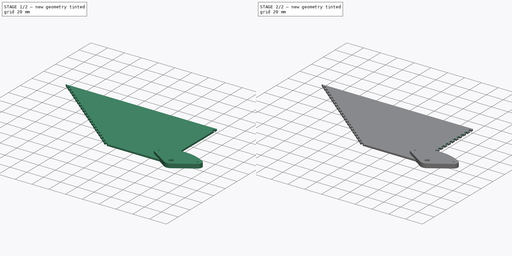
[diagram: build sequence overview — one tinted view per stage of 2, left to right]
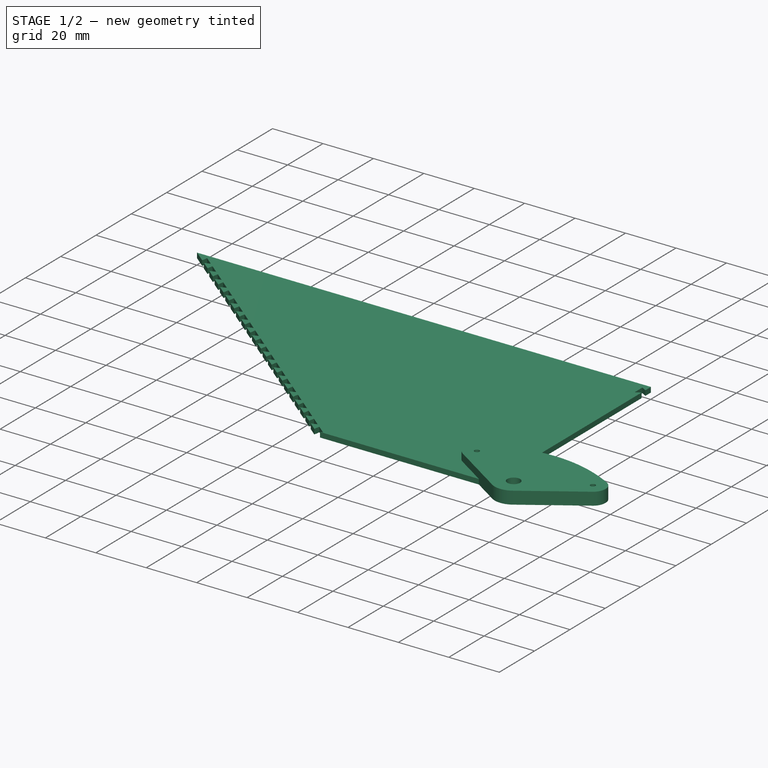
[diagram: stage 1 of 2 — iso view after this stage's code; geometry added in this stage tinted green]
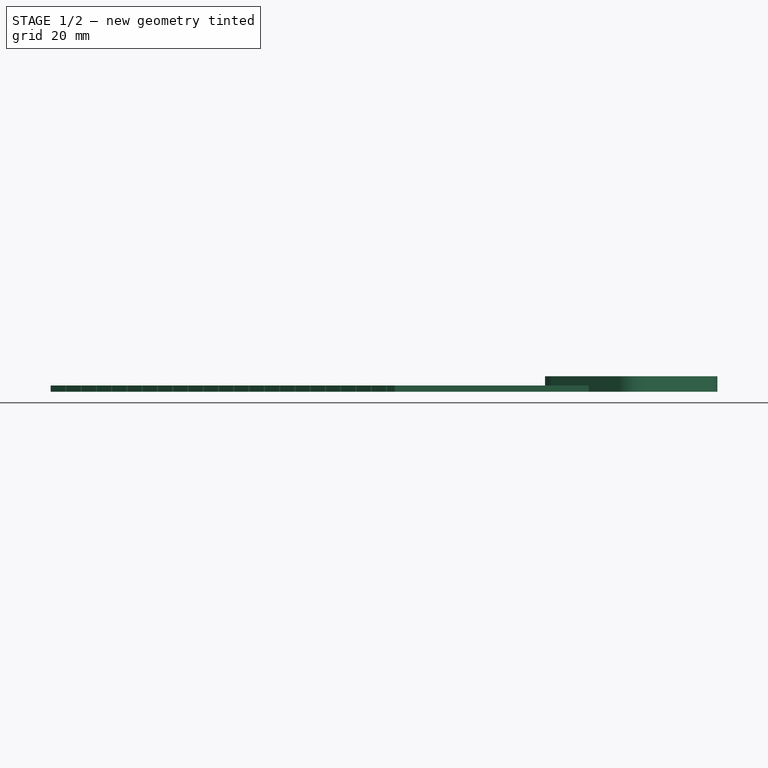
[diagram: stage 1 of 2 — front view after this stage's code; geometry added in this stage tinted green]
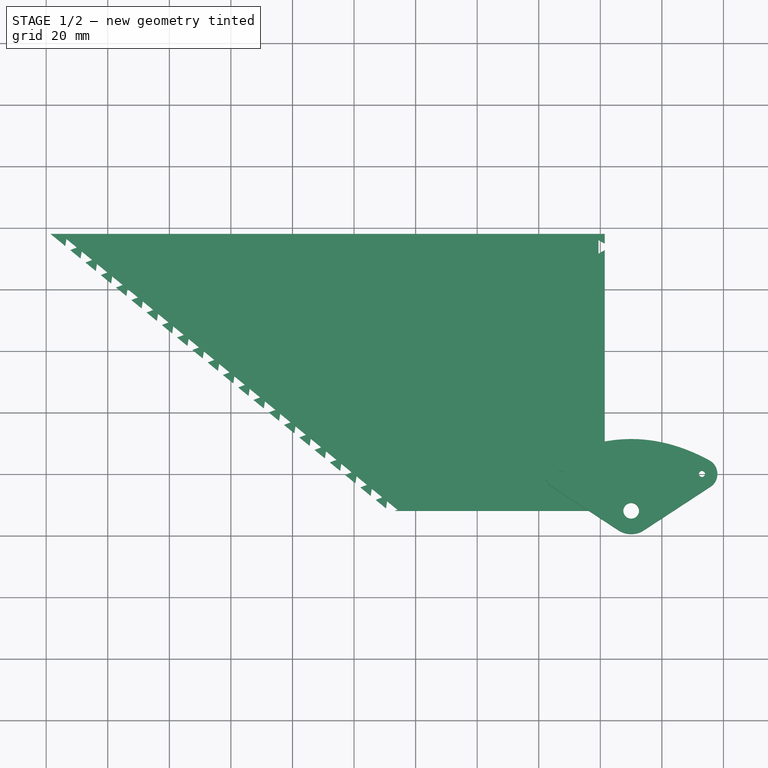
[diagram: stage 1 of 2 — top view after this stage's code; geometry added in this stage tinted green]
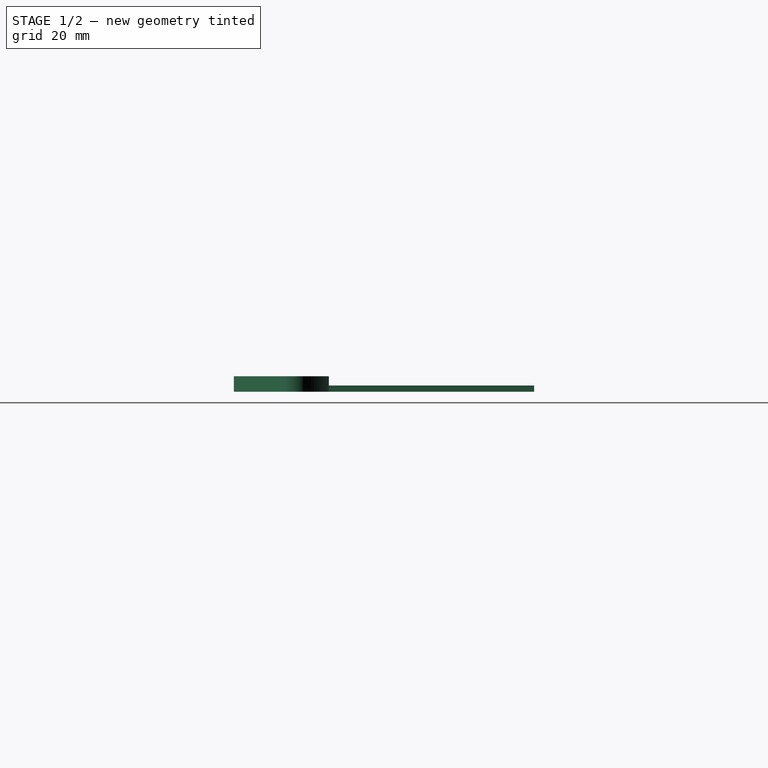
[diagram: stage 1 of 2 — right view after this stage's code; geometry added in this stage tinted green]
FCSTD DOCUMENT  (FreeCAD 0.19R24291 (Git))
Label: bunkerLeftSide
License: All rights reserved
LicenseURL: http://en.wikipedia.org/wiki/All_rights_reserved
objects: Sketcher::SketchObject×4, PartDesign::Pad×2, PartDesign::Pocket×2, PartDesign::LinearPattern×2, Spreadsheet::Sheet×1, PartDesign::Body×1
note: 15 computed .brp shape members not serialized (recipe doc carries the construction recipe); baked Part::Feature solids carry a one-line shape summary decoded from their .brp

FEATURE [Sketcher::SketchObject] Sketch
  FullyConstrained = false
  MapMode = 5
  Support = -> [XY_Plane]
  sketch-geometry (4):
    g0: LineSegment StartX=81.431 StartY=38.0909 StartZ=0 EndX=-98.569 EndY=38.0909 EndZ=0
    g1: LineSegment StartX=81.431 StartY=38.0909 StartZ=0 EndX=81.431 EndY=-51.9091 EndZ=0
    g2: LineSegment StartX=81.431 StartY=-51.9091 StartZ=0 EndX=11.431 EndY=-51.9091 EndZ=0
    g3: LineSegment StartX=11.431 StartY=-51.9091 StartZ=0 EndX=-98.569 EndY=38.0909 EndZ=0
  constraints (10):
    c: Horizontal(g0)
    c: Coincident(g0,g1)
    c: Vertical(g1)
    c: Coincident(g1,g2)
    c: Horizontal(g2)
    c: Coincident(g2,g3)
    c: Coincident(g3,g0)
    c: Distance(g1) = 90
    c: Distance(g0) = 180
    c: Distance(g2) = 70
FEATURE [Sketcher::SketchObject] Sketch001
  ExternalGeometry = -> [Sketch]
  FullyConstrained = false
  MapMode = 5
  Support = -> [XY_Plane]
  sketch-geometry (23):
    g0: LineSegment StartX=67.031 StartY=-39.9091 StartZ=0 EndX=90.031 EndY=-39.9091 EndZ=0
    g1: LineSegment StartX=90.031 StartY=-39.9091 StartZ=0 EndX=113.031 EndY=-39.9091 EndZ=0
    g2: LineSegment StartX=90.031 StartY=-39.9091 StartZ=0 EndX=90.031 EndY=-51.9091 EndZ=0
    g3: Circle CenterX=67.031 CenterY=-39.9091 CenterZ=0 NormalX=0 NormalY=0 NormalZ=1 AngleXU=0 Radius=1
    g4: Circle CenterX=113.031 CenterY=-39.9091 CenterZ=0 NormalX=0 NormalY=0 NormalZ=1 AngleXU=0 Radius=1
    g5: Circle CenterX=90.031 CenterY=-51.9091 CenterZ=0 NormalX=0 NormalY=0 NormalZ=1 AngleXU=0 Radius=2.55
    g6: LineSegment StartX=81.431 StartY=-51.9091 StartZ=0 EndX=90.031 EndY=-51.9091 EndZ=0
    g7: ArcOfParabola CenterX=90.031 CenterY=-28.6024 CenterZ=0 NormalX=0 NormalY=0 NormalZ=1 Focal=23.3067 AngleXU=-1.5708 StartAngle=-25.3918 EndAngle=25.3918
    g8: GeomPoint X=90.031 Y=-51.9091 Z=0
    g9: LineSegment StartX=90.031 StartY=-28.6024 StartZ=0 EndX=90.031 EndY=-51.9091 EndZ=0
    g10: LineSegment StartX=67.031 StartY=-39.9091 StartZ=0 EndX=64.6392 EndY=-35.5183 EndZ=0
    g11: GeomPoint X=64.6392 Y=-35.5183 Z=0
    g12: LineSegment StartX=113.031 StartY=-39.9091 StartZ=0 EndX=115.423 EndY=-35.5183 EndZ=0
    g13: GeomPoint X=115.423 Y=-35.5183 Z=0
    g14: ArcOfCircle CenterX=113.031 CenterY=-39.9091 CenterZ=0 NormalX=0 NormalY=0 NormalZ=1 AngleXU=0 Radius=5 StartAngle=5.29173 EndAngle=7.35519
    g15: GeomPoint X=68.7285 Y=-33.4701 Z=0
    g16: GeomPoint X=115.423 Y=-35.5183 Z=0
    g17: ArcOfCircle CenterX=67.031 CenterY=-39.9091 CenterZ=0 NormalX=0 NormalY=0 NormalZ=1 AngleXU=0 Radius=5 StartAngle=2.06959 EndAngle=4.13305
    g18: GeomPoint X=63.7573 Y=-43.6884 Z=0
    g19: GeomPoint X=116.305 Y=-43.6885 Z=0
    g20: ArcOfCircle CenterX=90.031 CenterY=-51.9091 CenterZ=0 NormalX=0 NormalY=0 NormalZ=1 AngleXU=0 Radius=7.55 StartAngle=4.13305 EndAngle=5.29173
    g21: LineSegment StartX=94.1644 StartY=-58.2271 StartZ=0 EndX=115.768 EndY=-44.0932 EndZ=0
    g22: LineSegment StartX=85.8976 StartY=-58.2271 StartZ=0 EndX=64.2936 EndY=-44.0932 EndZ=0
  constraints (55):
    c: Horizontal(g0)
    c: Coincident(g1,g0)
    c: Horizontal(g1)
    c: Coincident(g2,g0)
    c: Vertical(g2)
    c: Equal(g1,g0)
    c: Distance(g1,g0) = 46
    c: Distance(g2) = 12
    c: Coincident(g3,g0)
    c: Coincident(g4,g1)
    c: Equal(g4,g3)
    c: Coincident(g5,g2)
    c: Diameter(g5) = 5.1
    c: Diameter(g4) = 2
    c: Coincident(g6,g-4)
    c: Coincident(g6,g5)
    c: Horizontal(g6)
    c: Distance(g6) = 8.6
    c: InternalAlignment(g8,g7)
    c: Coincident(g8,g9)
    c: Coincident(g7,g9)
    c: Coincident(g10,g3)
    c: PointOnObject(g10,g7)
    c: PointOnObject(g11,g7)
    c: PointOnObject(g11,g10)
    c: Perpendicular(g7,g10,g11) = 1.5708
    c: Coincident(g12,g4)
    c: PointOnObject(g12,g7)
    c: PointOnObject(g13,g7)
    c: PointOnObject(g13,g12)
    c: Perpendicular(g7,g12,g13) = 1.5708
    c: Equal(g12,g10)
    c: Coincident(g8,g5)
    c: Coincident(g14,g7)
    c: PointOnObject(g15,g7)
    c: PointOnObject(g16,g7)
    c: PointOnObject(g16,g14)
    c: Tangent(g7,g14,g16) = 1.5708
    c: Distance(g12) = 5
    c: Coincident(g17,g3)
    c: Coincident(g17,g7)
    c: Coincident(g14,g4)
    c: Equal(g14,g17)
    c: PointOnObject(g18,g17)
    c: PointOnObject(g19,g14)
    c: Coincident(g20,g5)
    c: Radius(g20) = 7.55
    c: Coincident(g21,g20)
    c: Coincident(g21,g14)
    c: Coincident(g22,g20)
    c: Coincident(g22,g17)
    c: Tangent(g14,g21)
    c: Tangent(g22,g17)
    c: Tangent(g20,g22)
    c: Tangent(g20,g21)
FEATURE [PartDesign::Pad] Pad
  Direction = (1,1,1)
  Length = 2
  Length2 = 100
  Profile = -> Sketch
  Type = 0
FEATURE [PartDesign::Pad] Pad001
  BaseFeature = -> Pad
  Direction = (1,1,1)
  Length = 5
  Length2 = 100
  Profile = -> Sketch001
  Type = 0
FEATURE [Spreadsheet::Sheet] Spreadsheet
  cells = A1=2* cos(60) * 2 + 2.1 +2; B1(thickness)=2; B2(dovetail_length)==thickness * 1 / tan(60) * 2 + thickness + gap + 2; B3(gap)=0.1; C5==cos(60)
FEATURE [PartDesign::Body] Body
  Group = -> [Sketch,Sketch001,Pad,Pad001,Sketch002,Pocket,LinearPattern,Sketch003,Pocket001,LinearPattern001]
  Origin = -> Origin
  Tip = -> LinearPattern001
FEATURE [Sketcher::SketchObject] Sketch002
  ExternalGeometry = -> [Pad001]
  FullyConstrained = false
  MapMode = 5
  Placement = pos=(0,0,2) rot=(0,0,1;0rad)
  Support = -> [LinearPattern]
  sketch-geometry (6):
    g0: LineSegment StartX=-93.4327 StartY=36.4726 StartZ=0 EndX=-90.0201 EndY=33.6804 EndZ=0
    g1: LineSegment StartX=-93.4327 StartY=36.4726 StartZ=0 EndX=-94.6992 EndY=34.9247 EndZ=0
    g2: LineSegment StartX=-93.4327 StartY=36.4726 StartZ=0 EndX=-93.8055 EndY=34.1935 EndZ=0
    g3: LineSegment StartX=-93.8055 StartY=34.1935 StartZ=0 EndX=-92.1802 EndY=32.8637 EndZ=0
    g4: LineSegment StartX=-92.1802 StartY=32.8637 StartZ=0 EndX=-90.0201 EndY=33.6804 EndZ=0
    g5: LineSegment StartX=-98.569 StartY=38.0909 StartZ=0 EndX=-96.4151 EndY=40.7235 EndZ=0
  constraints (18):
    c: Parallel(g0,g-3)
    c: Coincident(g1,g0)
    c: PointOnObject(g1,g-3)
    c: Perpendicular(g-3,g1)
    c: Distance(g1) = 2
    c: Coincident(g0,g2)
    c: PointOnObject(g2,g-3)
    c: Coincident(g2,g3)
    c: PointOnObject(g3,g-3)
    c: Coincident(g3,g4)
    c: Coincident(g4,g0)
    c: Equal(g4,g2)
    c: Angle(g-3,g4) = 1.0472
    c: Distance(g3) = 2.1
    c: Coincident(g5,g-3)
    c: Perpendicular(g5,g-3)
    c: Distance(g0,g5) = 5
    c: Distance(g0) = 4.4094
FEATURE [PartDesign::Pocket] Pocket
  BaseFeature = -> Pad001
  Length = 2
  Length2 = 100
  Profile = -> Sketch002
  Type = 0
FEATURE [PartDesign::LinearPattern] LinearPattern
  BaseFeature = -> Pocket
  Direction = -> Pocket [Edge23]
  Length = 147.416
  Occurrences = 24
  Originals = -> [Pocket]
  Reversed = true
  expr: Length = Spreadsheet.dovetail_length * (24 - 1)
FEATURE [Sketcher::SketchObject] Sketch003
  ExternalGeometry = -> [LinearPattern]
  FullyConstrained = true
  MapMode = 5
  Placement = pos=(0,0,2) rot=(0,0,1;0rad)
  Support = -> [LinearPattern]
  expr: Constraints[6] = Spreadsheet.thickness
  sketch-geometry (4):
    g0: LineSegment StartX=81.431 StartY=34.9362 StartZ=0 EndX=79.431 EndY=36.0909 EndZ=0
    g1: LineSegment StartX=79.431 StartY=36.0909 StartZ=0 EndX=79.431 EndY=31.6815 EndZ=0
    g2: LineSegment StartX=79.431 StartY=31.6815 StartZ=0 EndX=81.431 EndY=32.8362 EndZ=0
    g3: LineSegment StartX=81.431 StartY=32.8362 StartZ=0 EndX=81.431 EndY=34.9362 EndZ=0
  constraints (12):
    c: PointOnObject(g0,g-3)
    c: Coincident(g0,g1)
    c: Vertical(g1)
    c: Coincident(g1,g2)
    c: PointOnObject(g2,g-3)
    c: Equal(g2,g0)
    c: Distance(g1,g-3) = 2
    c: Angle(g0,g-3) = 2.0944
    c: DistanceY(g0,g-3) = 2
    c: Coincident(g3,g2)
    c: Coincident(g3,g0)
    c: Distance(g3) = 2.1
FEATURE [PartDesign::Pocket] Pocket001
  BaseFeature = -> LinearPattern
  Length = 5
  Length2 = 1
  Profile = -> Sketch003
  Type = 4
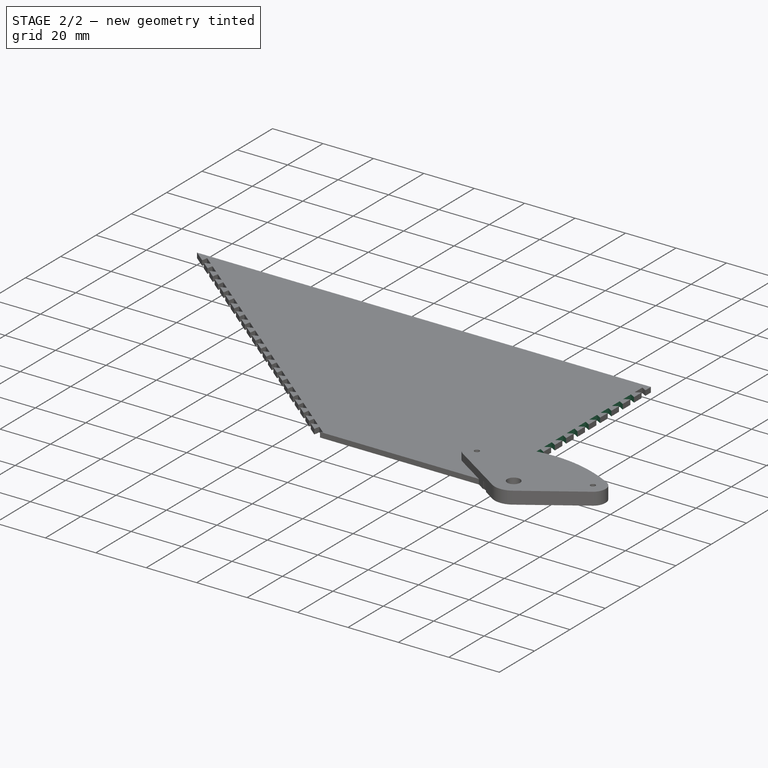
[diagram: stage 2 of 2 — iso view after this stage's code; geometry added in this stage tinted green]
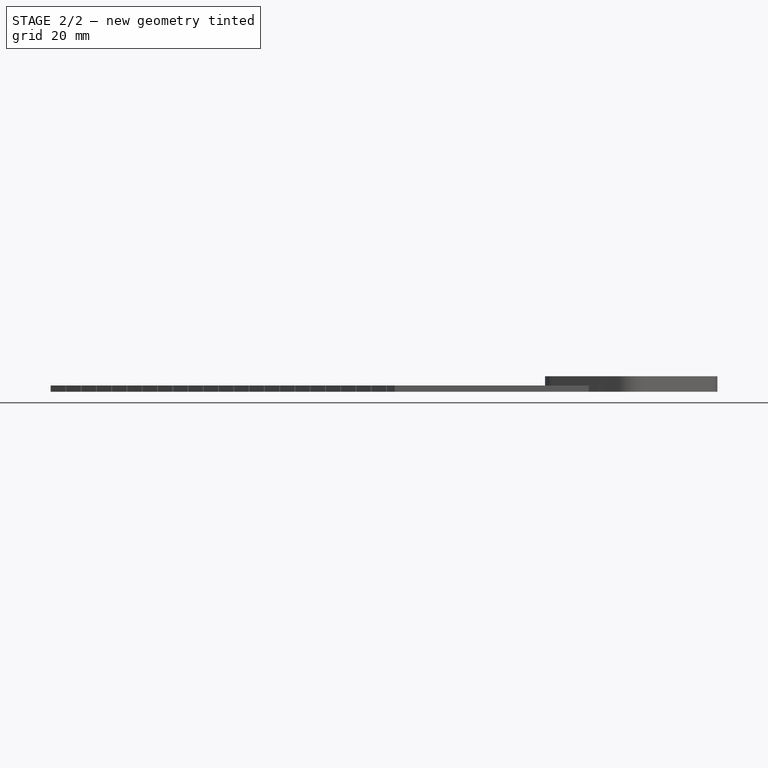
[diagram: stage 2 of 2 — front view after this stage's code; geometry added in this stage tinted green]
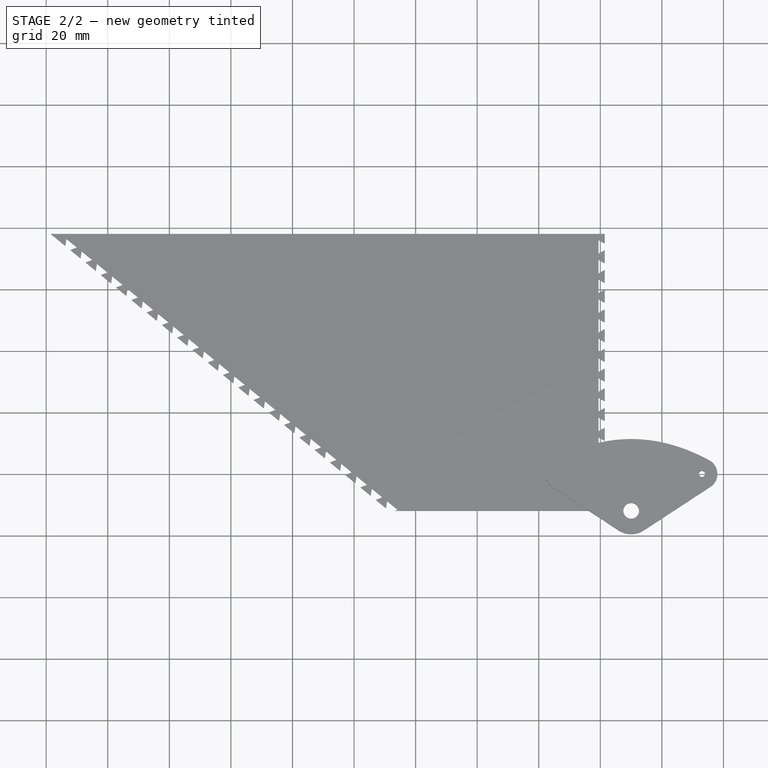
[diagram: stage 2 of 2 — top view after this stage's code; geometry added in this stage tinted green]
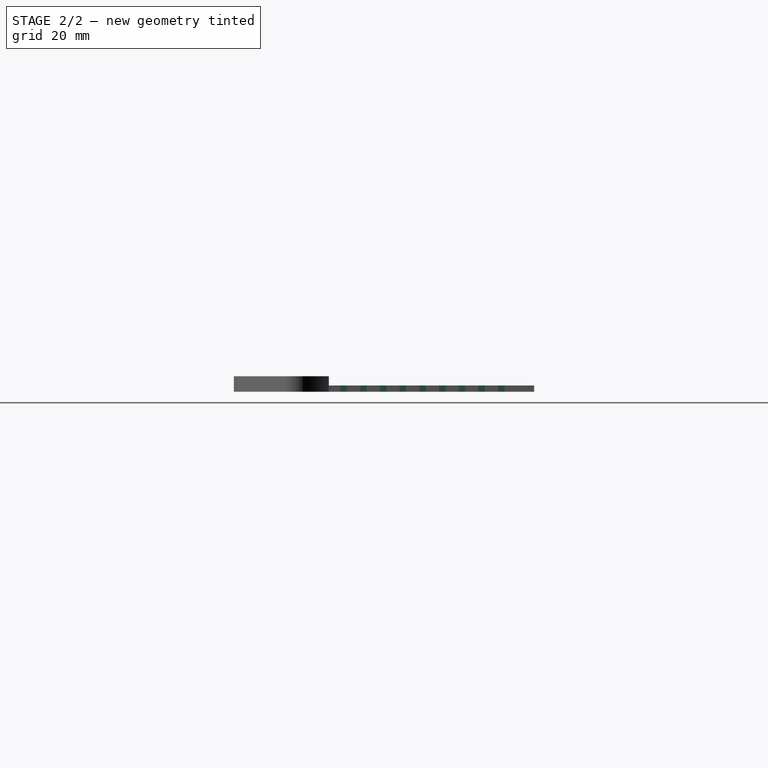
[diagram: stage 2 of 2 — right view after this stage's code; geometry added in this stage tinted green]
FEATURE [PartDesign::LinearPattern] LinearPattern001
  BaseFeature = -> Pocket001
  Direction = -> Sketch003 [V_Axis]
  Length = 89.7316
  Occurrences = 15
  Originals = -> [Pocket001]
  Reversed = true
  expr: Length = Spreadsheet.dovetail_length * 14
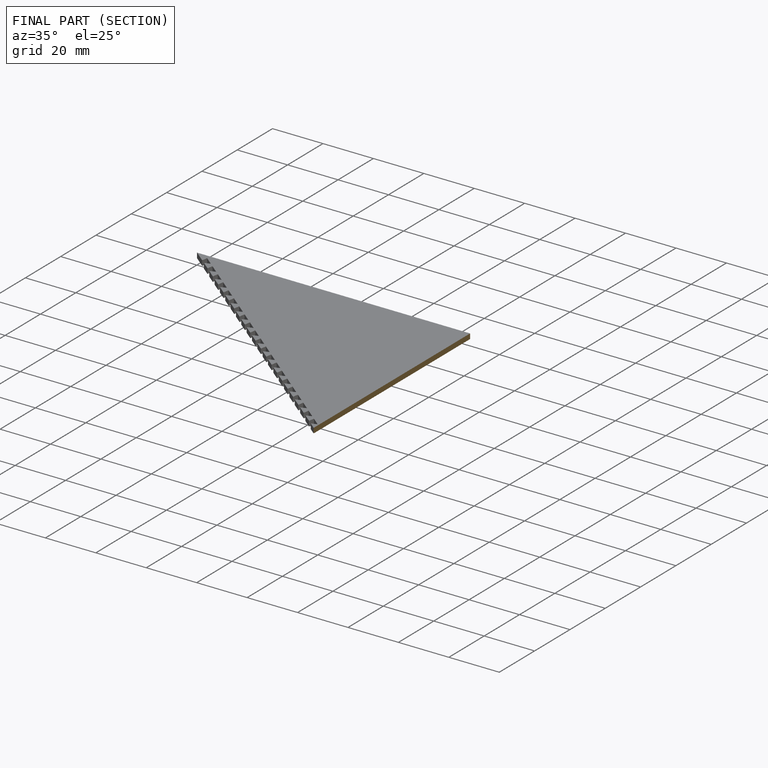
[diagram: finished part — half-section view (interior)]
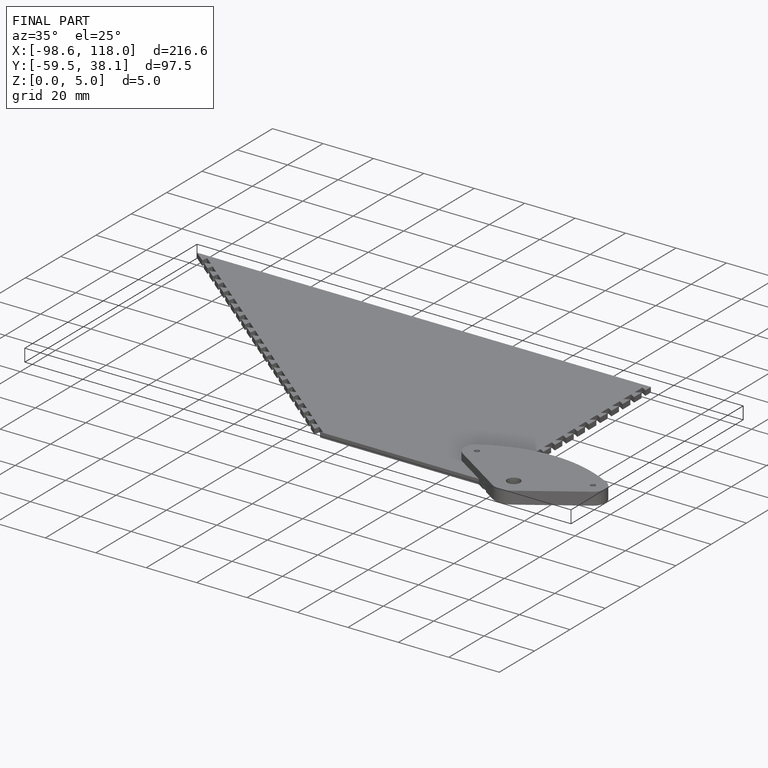
[diagram: finished part — iso view with bounding-box wireframe]
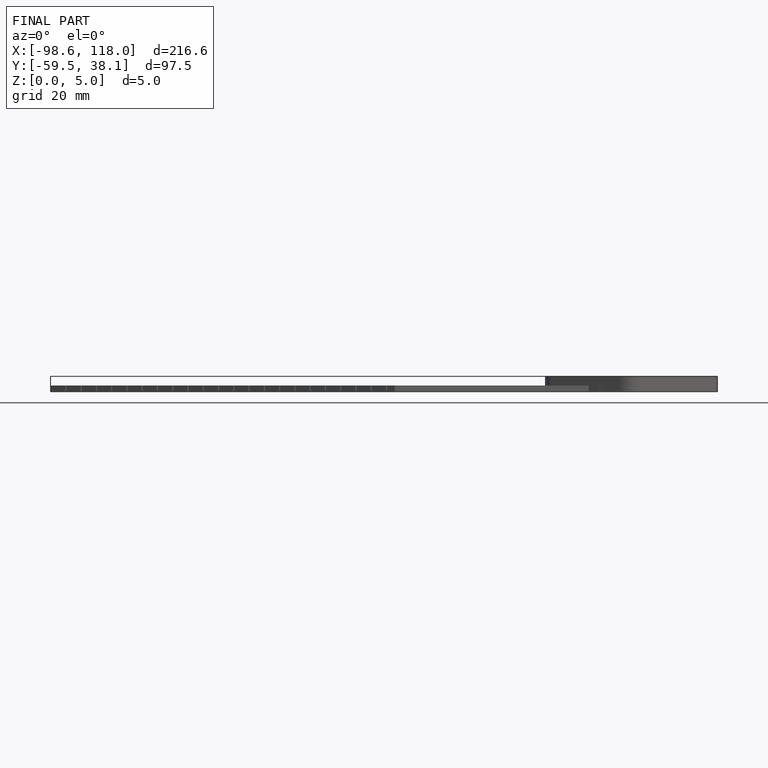
[diagram: finished part — front view with bounding-box wireframe]
